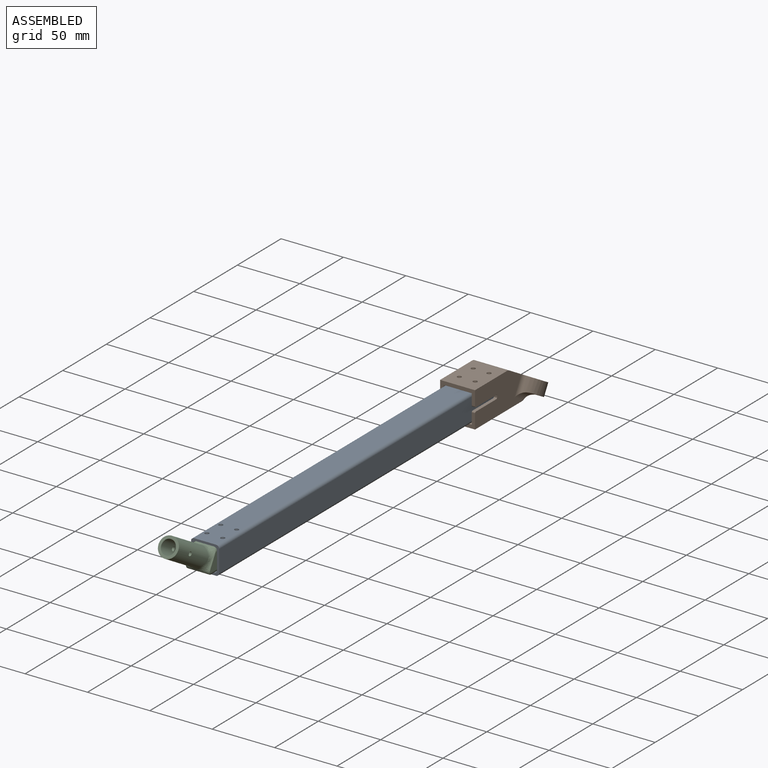
[diagram: assembled view]
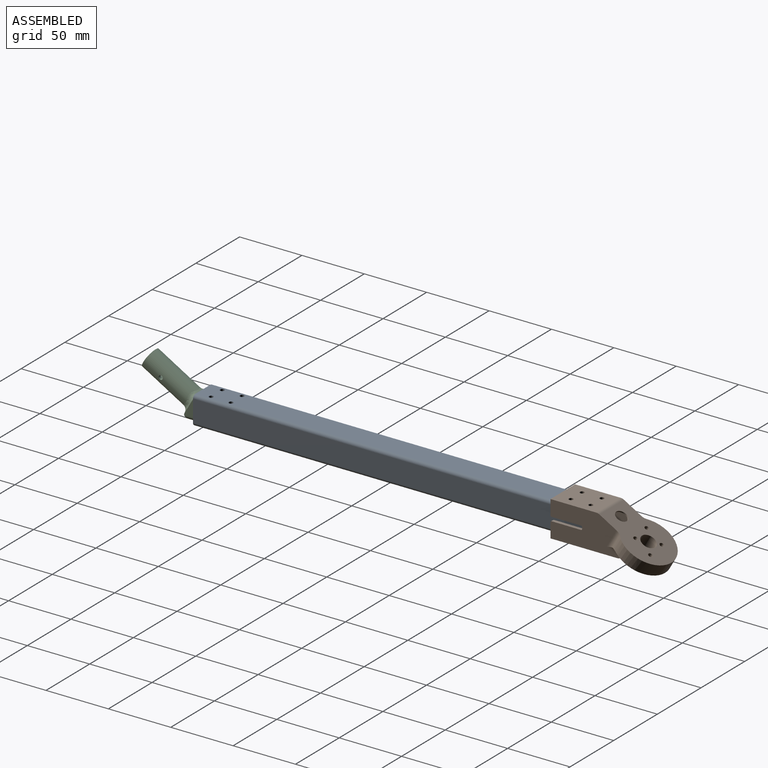
[diagram: assembled view, second angle]
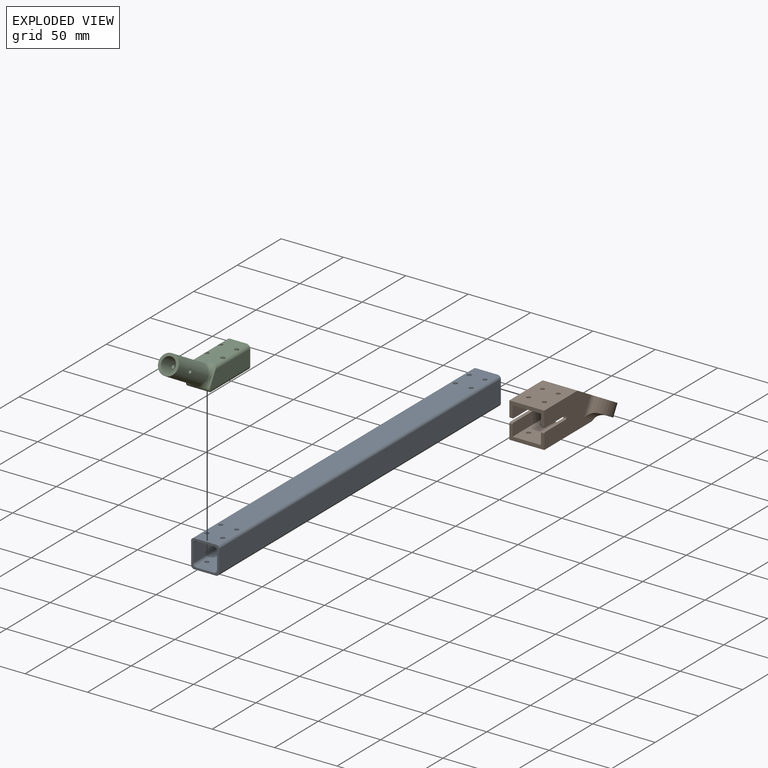
[diagram: exploded view]
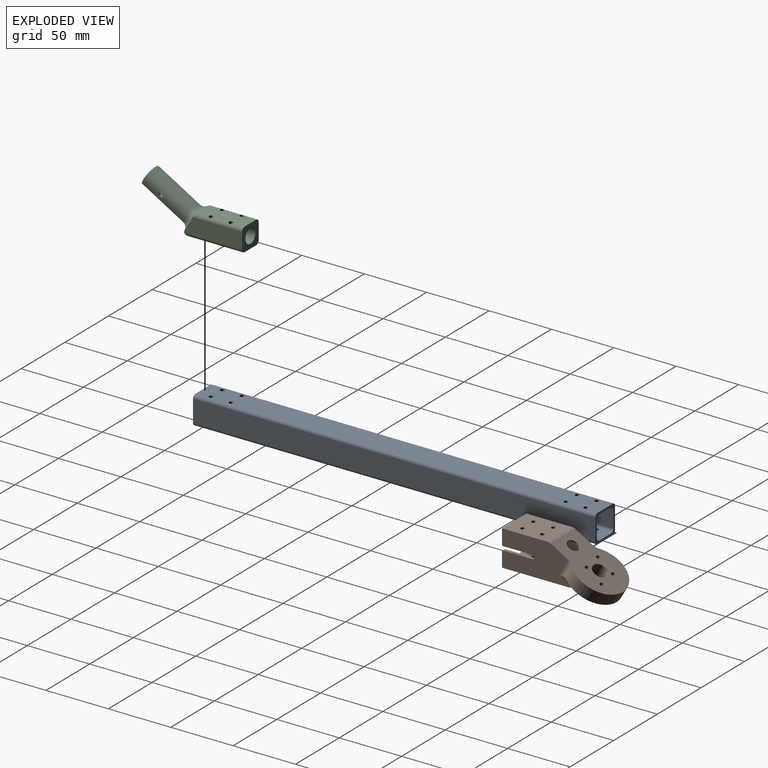
[diagram: exploded view, second angle]
ASSEMBLY  parts=3 mates=4
PART A: 34 faces, bbox 22.5x322.5x22.5 mm
  f0: cylinder r=2.54mm len=322.5mm, axis (0,-1,0), area 1277.6mm2, adj f7,f8,f12,f13,f23,f25,f31,f33
  f1: cylinder r=2.54mm len=322.5mm, axis (0,1,0), area 1277.6mm2, adj f7,f10,f12,f13,f22,f24,f30,f32
  f2: cylinder r=2.54mm len=322.5mm, axis (0,1,0), area 1277.6mm2, adj f8,f9,f12,f13,f19,f21,f27,f29
  f3: cylinder r=2.54mm len=322.5mm, axis (0,-1,0), area 1277.6mm2, adj f9,f10,f12,f13,f18,f20,f26,f28
  f4: plane 322.5x17.42mm, normal (0,0,-1), area 5549.5mm2, adj f12,f13,f14,f17,f18,f20,f22,f24
  f5: plane 322.5x17.42mm, normal (1,0,0), area 5617.9mm2, adj f12,f13,f14,f15
  f6: plane 322.5x17.42mm, normal (0,0,1), area 5549.5mm2, adj f12,f13,f15,f16,f19,f21,f23,f25
  f7: plane 322.5x13.97mm, normal (1,0,0), area 4505.3mm2, adj f0,f1,f12,f13
  f8: plane 322.5x13.97mm, normal (0,0,-1), area 4454.8mm2, adj f0,f2,f12,f13,f19,f21,f23,f25
  f9: plane 322.5x13.97mm, normal (-1,0,0), area 4505.3mm2, adj f2,f3,f12,f13
  f10: plane 322.5x13.97mm, normal (0,0,1), area 4454.8mm2, adj f1,f3,f12,f13,f18,f20,f22,f24
  f11: plane 322.5x17.42mm, normal (-1,0,0), area 5617.9mm2, adj f12,f13,f16,f17
  f12: plane 22.5x22.5mm, normal (0,-1,0), area 143.3mm2, adj f0,f1,f2,f3,f4,f5,f6,f7
  f13: plane 22.5x22.5mm, normal (0,1,0), area 143.3mm2, adj f0,f1,f2,f3,f4,f5,f6,f7
  f14: cylinder r=2.54mm len=322.5mm, axis (0,1,0), area 1286.7mm2, adj f4,f5,f12,f13
  f15: cylinder r=2.54mm len=322.5mm, axis (0,-1,0), area 1286.7mm2, adj f5,f6,f12,f13
  f16: cylinder r=2.54mm len=322.5mm, axis (0,1,0), area 1286.7mm2, adj f6,f11,f12,f13
  f17: cylinder r=2.54mm len=322.5mm, axis (0,-1,0), area 1286.7mm2, adj f4,f11,f12,f13
  f18: cylinder r=1.65mm len=3.3mm, axis (0,0,1), area 18.3mm2, adj f3,f4,f10
  f19: cylinder r=1.65mm len=3.3mm, axis (0,0,1), area 18.3mm2, adj f2,f6,f8
  f20: cylinder r=1.65mm len=3.3mm, axis (0,0,1), area 18.3mm2, adj f3,f4,f10
  f21: cylinder r=1.65mm len=3.3mm, axis (0,0,1), area 18.3mm2, adj f2,f6,f8
  f22: cylinder r=1.65mm len=3.3mm, axis (0,0,1), area 18.3mm2, adj f1,f4,f10
  f23: cylinder r=1.65mm len=3.3mm, axis (0,0,1), area 18.3mm2, adj f0,f6,f8
  f24: cylinder r=1.65mm len=3.3mm, axis (0,0,1), area 18.3mm2, adj f1,f4,f10
  f25: cylinder r=1.65mm len=3.3mm, axis (0,0,1), area 18.3mm2, adj f0,f6,f8
  f26: cylinder r=1.65mm len=3.3mm, axis (0,0,1), area 18.3mm2, adj f3,f4,f10
  f27: cylinder r=1.65mm len=3.3mm, axis (0,0,1), area 18.3mm2, adj f2,f6,f8
  f28: cylinder r=1.65mm len=3.3mm, axis (0,0,1), area 18.3mm2, adj f3,f4,f10
  f29: cylinder r=1.65mm len=3.3mm, axis (0,0,1), area 18.3mm2, adj f2,f6,f8
  f30: cylinder r=1.65mm len=3.3mm, axis (0,0,1), area 18.3mm2, adj f1,f4,f10
  f31: cylinder r=1.65mm len=3.3mm, axis (0,0,1), area 18.3mm2, adj f0,f6,f8
  f32: cylinder r=1.65mm len=3.3mm, axis (0,0,1), area 18.3mm2, adj f1,f4,f10
  f33: cylinder r=1.65mm len=3.3mm, axis (0,0,1), area 18.3mm2, adj f0,f6,f8
PART B: 72 faces, bbox 89.6x42.1x44.6 mm
  f0: plane 1.3x1.01mm, normal (0,1,0), area 0.7mm2, adj f2,f17,f70
  f1: plane 12.56x6.87mm, normal (0,1,0), area 72.7mm2, adj f10,f11,f17,f29
  f2: cylinder r=5.08mm len=2.87mm, axis (0,1,0), area 9.4mm2, adj f0,f3,f17,f29,f63,f64,f70
  f3: plane 61.81x43.73mm, normal (0,-1,0), area 1295.7mm2, adj f2,f5,f14,f27,f28,f29,f50,f51
  f4: plane 61.81x43.73mm, normal (0,1,0), area 1295.7mm2, adj f5,f14,f27,f28,f29,f38,f47,f48
  f5: plane 28x10.1mm, normal (0.87,0,-0.5), area 126.6mm2, adj f3,f4,f6,f7,f28,f34,f54,f57
  f6: plane 55.94x40.28mm, normal (0,1,0), area 1038.2mm2, adj f5,f10,f11,f27,f29,f32,f33,f34
  f7: plane 49.4x40.28mm, normal (0,-1,0), area 999.2mm2, adj f5,f27,f29,f31,f32,f33,f34,f35
  f8: plane 42x32.11mm, normal (0,0,-1), area 641.1mm2, adj f12,f13,f17,f20,f23,f26,f37,f63
  f9: cylinder r=21mm len=15.24mm, axis (0,0,1), area 8.6mm2, adj f29,f32
  f10: cylinder r=21mm len=12.61mm, axis (0,0,1), area 1.9mm2, adj f1,f6,f11,f29
  f11: plane 6.95x0.34mm, normal (0,0,-1), area 0.9mm2, adj f1,f6,f10,f17,f37
  f12: cylinder r=6mm len=12mm, axis (0,0,-1), area 377mm2, adj f8,f14,f67,f68
  f13: cylinder r=21mm len=42mm, axis (0,0,-1), area 978.1mm2, adj f8,f14,f62,f63,f65,f66
  f14: plane 55.15x42mm, normal (0,0,1), area 1583.7mm2, adj f3,f4,f12,f13,f15,f18,f21,f24
  f15: cylinder r=1.65mm len=5mm, axis (0,0,-1), area 51.8mm2, adj f14,f16
  f16: plane 6.5x6.5mm, normal (0,0,-1), area 24.6mm2, adj f15,f17
  f17: cylinder r=3.25mm len=13.6mm, axis (0,0,-1), area 138.3mm2, adj f0,f1,f2,f8,f11,f16,f29,f37
  f18: cylinder r=1.65mm len=5mm, axis (0,0,-1), area 51.8mm2, adj f14,f19
  f19: plane 6.5x6.5mm, normal (0,0,-1), area 24.6mm2, adj f18,f20
  f20: cylinder r=3.25mm len=7mm, axis (0,0,-1), area 113.7mm2, adj f8,f19,f68
  f21: cylinder r=1.65mm len=5mm, axis (0,0,-1), area 51.8mm2, adj f14,f22
  f22: plane 6.5x6.5mm, normal (0,0,-1), area 24.6mm2, adj f21,f23
  f23: cylinder r=3.25mm len=6.5mm, axis (0,0,-1), area 102.1mm2, adj f8,f22
  f24: cylinder r=1.65mm len=5mm, axis (0,0,-1), area 51.8mm2, adj f14,f25
  f25: plane 6.5x6.5mm, normal (0,0,-1), area 24.6mm2, adj f24,f26
  f26: cylinder r=3.25mm len=6.5mm, axis (0,0,-1), area 102.1mm2, adj f8,f25
  f27: plane 28x10.1mm, normal (0.87,0,-0.5), area 126.6mm2, adj f3,f4,f6,f7,f29,f35,f53,f58
  f28: plane 31.84x28mm, normal (0.5,0,0.87), area 995.1mm2, adj f3,f4,f5,f40,f42,f44,f46,f71
  f29: plane 46.43x28.07mm, normal (-0.5,0,-0.87), area 1136.4mm2, adj f1,f2,f3,f4,f6,f7,f9,f10
  f30: plane 10.9x8.64mm, normal (0,-1,0), area 41.4mm2, adj f29,f31,f38,f68,f69
  f31: cylinder r=21mm len=10.31mm, axis (0,0,1), area 1.4mm2, adj f7,f29,f30,f69
  f32: plane 22.75x5.75mm, normal (0,0,1), area 116.2mm2, adj f6,f7,f9,f29,f35
  f33: plane 22.75x8.14mm, normal (0,0,-1), area 133.5mm2, adj f6,f7,f34,f36,f61
  f34: plane 35.64x22.75mm, normal (-0.5,0,-0.87), area 901.9mm2, adj f5,f6,f7,f33,f40,f42,f44,f46
  f35: plane 30.36x22.75mm, normal (0.5,0,0.87), area 763.2mm2, adj f6,f7,f27,f32,f39,f41,f43,f45
  f36: cylinder r=7.62mm len=22.75mm, axis (0,1,0), area 186.8mm2, adj f6,f7,f33,f37,f61,f69
  f37: cylinder r=5.08mm len=16.88mm, axis (0,1,0), area 106.4mm2, adj f6,f8,f11,f17,f36,f69
  f38: cylinder r=5.08mm len=3.09mm, axis (0,1,0), area 9.9mm2, adj f4,f29,f30,f66,f67,f68
  f39: cylinder r=1.65mm len=4.3mm, axis (0.5,0,0.87), area 29.8mm2, adj f29,f35
  f40: cylinder r=1.65mm len=4.3mm, axis (0.5,0,0.87), area 29.8mm2, adj f28,f34
  f41: cylinder r=1.65mm len=4.3mm, axis (0.5,0,0.87), area 29.8mm2, adj f29,f35
  f42: cylinder r=1.65mm len=4.3mm, axis (0.5,0,0.87), area 29.8mm2, adj f28,f34
  f43: cylinder r=1.65mm len=4.3mm, axis (0.5,0,0.87), area 29.8mm2, adj f29,f35
  f44: cylinder r=1.65mm len=4.3mm, axis (0.5,0,0.87), area 29.8mm2, adj f28,f34
  f45: cylinder r=1.65mm len=4.3mm, axis (0.5,0,0.87), area 29.8mm2, adj f29,f35
  f46: cylinder r=1.65mm len=4.3mm, axis (0.5,0,0.87), area 29.8mm2, adj f28,f34
  f47: plane 2.63x1.02mm, normal (0.87,0,-0.5), area 3.1mm2, adj f4,f7,f59,f60
  f48: plane 20.27x11.7mm, normal (-0.5,0,-0.87), area 61.4mm2, adj f4,f7,f57,f59
  f49: plane 20.27x11.7mm, normal (0.5,0,0.87), area 61.4mm2, adj f4,f7,f58,f60
  f50: plane 20.27x11.7mm, normal (0.5,0,0.87), area 61.4mm2, adj f3,f6,f53,f56
  f51: plane 20.27x11.7mm, normal (-0.5,0,-0.87), area 61.4mm2, adj f3,f6,f54,f55
  f52: plane 2.63x1.02mm, normal (0.87,0,-0.5), area 3.1mm2, adj f3,f6,f55,f56
  f53: cylinder r=1mm len=2.63mm, axis (0,1,0), area 4.1mm2, adj f3,f6,f27,f50
  f54: cylinder r=1mm len=2.63mm, axis (0,-1,0), area 4.1mm2, adj f3,f5,f6,f51
  f55: cylinder r=1mm len=2.63mm, axis (0,-1,0), area 4.1mm2, adj f3,f6,f51,f52
  f56: cylinder r=1mm len=2.63mm, axis (0,1,0), area 4.1mm2, adj f3,f6,f50,f52
  f57: cylinder r=1mm len=2.63mm, axis (0,-1,0), area 4.1mm2, adj f4,f5,f7,f48
  f58: cylinder r=1mm len=2.63mm, axis (0,1,0), area 4.1mm2, adj f4,f7,f27,f49
  f59: cylinder r=1mm len=2.63mm, axis (0,-1,0), area 4.1mm2, adj f4,f7,f47,f48
  f60: cylinder r=1mm len=2.63mm, axis (0,1,0), area 4.1mm2, adj f4,f7,f47,f49
  f61: cylinder r=4.76mm len=9.53mm, axis (0,0,1), area 32.6mm2, adj f14,f33,f36
  f62: cylinder r=6mm len=16mm, axis (0,0,-1), area 61.4mm2, adj f3,f13,f14,f63
  f63: cylinder r=6mm len=18.26mm, axis (1,0,0), area 91.1mm2, adj f2,f3,f8,f13,f62,f64
  f64: cylinder r=6mm len=13.5mm, axis (0,1,0), area 54.7mm2, adj f2,f8,f63,f70
  f65: cylinder r=6mm len=16mm, axis (0,0,-1), area 61.4mm2, adj f4,f13,f14,f66
  f66: cylinder r=6mm len=18.26mm, axis (1,0,0), area 91.1mm2, adj f4,f8,f13,f38,f65,f67
  f67: cylinder r=6mm len=14.01mm, axis (0,1,0), area 59.4mm2, adj f8,f12,f38,f66,f68
  f68: cylinder r=6mm len=10.74mm, axis (1,0,0), area 42mm2, adj f8,f12,f20,f30,f38,f67,f69
  f69: torus R=11.08mm, axis (0,1,0), area 105.4mm2, adj f7,f30,f31,f36,f37,f68
  f70: cylinder r=5mm len=7.09mm, axis (-1,0,0), area 20.9mm2, adj f0,f2,f8,f17,f64
  f71: cylinder r=5mm len=28mm, axis (0,1,0), area 73.3mm2, adj f3,f4,f14,f28
PART C: 41 faces, bbox 85.7x20.7x39.5 mm
  f0: plane 18.12x3.62mm, normal (0,0,-1), area 50.8mm2, adj f1,f34,f35,f36,f37,f38,f39,f40
  f1: bspline ~3.13x3.07mm, area 6.5mm2, adj f0,f2,f33,f34,f40
  f2: bspline ~19.12x5.8mm, area 70.4mm2, adj f1,f3,f29,f30,f31,f32,f33
  f3: bspline ~1.91x1.24mm, area 0mm2, adj f2,f4,f29
  f4: bspline ~1.87x1.7mm, area 0.3mm2, adj f3,f5,f29,f32
  f5: bspline ~16.27x1.81mm, area 13.5mm2, adj f4,f6,f26,f27,f28,f29
  f6: cylinder r=3mm len=36mm, axis (-0.87,0,0.5), area 174.6mm2, adj f5,f7,f8,f19,f20,f21,f22,f26
  f7: bspline ~1.91x1.24mm, area 0mm2, adj f6,f22,f26
  f8: cylinder r=1.65mm len=17.71mm, axis (-0.5,0,-0.87), area 172.5mm2, adj f6,f9,f18,f28,f38
  f9: cylinder r=5.71mm len=40.86mm, axis (0.87,0,-0.5), area 1368.1mm2, adj f8,f10,f15,f16,f17,f19,f20
  f10: bspline ~11.43x5.72mm, area -0.6mm2, adj f9,f11
  f11: cylinder r=5.71mm len=45.66mm, axis (1,0,0), area 1597.3mm2, adj f10,f12,f13,f14,f15
  f12: cylinder r=1.65mm len=3.3mm, axis (0,-1,0), area 23.8mm2, adj f11,f31
  f13: plane 15.88x15.88mm, normal (1,0,0), area 95.3mm2, adj f11,f31
  f14: cylinder r=1.65mm len=3.3mm, axis (0,-1,0), area 21.9mm2, adj f11,f31
  f15: bspline ~11.43x6.12mm, area -2.5mm2, adj f9,f11
  f16: cylinder r=1.65mm len=17.71mm, axis (-0.5,0,-0.87), area 176mm2, adj f9,f18,f28,f29,f40
  f17: cylinder r=1.65mm len=17.71mm, axis (-0.5,0,-0.87), area 176mm2, adj f9,f18,f28,f29,f40
  f18: plane 36.71x21.19mm, normal (-0.5,0,-0.87), area 533.7mm2, adj f8,f16,f17,f19,f20,f38,f39,f40
  f19: cylinder r=1.65mm len=17.71mm, axis (-0.5,0,-0.87), area 172.5mm2, adj f6,f9,f18,f28,f38
  f20: plane 19.05x16.06mm, normal (-0.87,0,0.5), area 242.9mm2, adj f6,f9,f18,f21,f28,f29,f33,f38
  f21: plane 40.89x34.18mm, normal (0,1,0), area 544.6mm2, adj f6,f20,f22,f37,f38
  f22: bspline ~19.12x5.8mm, area 70.4mm2, adj f6,f7,f21,f23,f24,f31,f37
  f23: torus R=13.02mm, axis (1,0,0), area 2.6mm2, adj f22,f26,f27,f31
  f24: torus R=13.02mm, axis (1,0,0), area 2.2mm2, adj f22,f25,f31,f36
  f25: bspline ~19.27x5.56mm, area 47.5mm2, adj f24,f30,f31,f35
  f26: bspline ~1.87x1.7mm, area 0.3mm2, adj f5,f6,f7,f23
  f27: bspline ~19.27x5.56mm, area 55.7mm2, adj f5,f23,f31,f32
  f28: plane 32.78x18.93mm, normal (0.5,0,0.87), area 472.1mm2, adj f5,f6,f8,f16,f17,f19,f20,f29
  f29: cylinder r=3mm len=36mm, axis (0.87,0,-0.5), area 174.6mm2, adj f2,f3,f4,f5,f16,f17,f20,f28
  f30: torus R=13.02mm, axis (1,0,0), area 2.2mm2, adj f2,f25,f31,f34
  f31: cylinder r=7.94mm len=39.75mm, axis (1,0,0), area 1920.1mm2, adj f2,f12,f13,f14,f22,f23,f24,f25
  f32: torus R=13.02mm, axis (1,0,0), area 2.6mm2, adj f2,f4,f27,f31
  f33: plane 40.9x34.18mm, normal (0,-1,0), area 544.6mm2, adj f1,f2,f20,f29,f40
  f34: bspline ~3.65x3.15mm, area 1.8mm2, adj f0,f1,f30,f35
  f35: bspline ~14.88x2.35mm, area 28.4mm2, adj f0,f25,f34,f36
  f36: bspline ~3.65x3.15mm, area 1.8mm2, adj f0,f24,f35,f37
  f37: bspline ~3.13x3.07mm, area 6.5mm2, adj f0,f21,f22,f36,f38
  f38: cylinder r=3mm len=41.67mm, axis (0.87,0,-0.5), area 202.3mm2, adj f0,f8,f18,f19,f20,f21,f37,f39
  f39: cylinder r=2.54mm len=15.83mm, axis (0,1,0), area 19.2mm2, adj f0,f18,f38,f40
  f40: cylinder r=3mm len=41.67mm, axis (-0.87,0,0.5), area 202.3mm2, adj f0,f1,f16,f17,f18,f20,f33,f39
PLACE A t=(-121.63,-73.19,51.3)mm
PLACE B rot(axis=(-0.25,-0.25,-0.94),93.8deg) t=(-121.38,118.02,39.27)mm
PLACE C rot(axis=(-0.25,-0.25,-0.94),93.8deg) t=(-121.63,-234.78,50.31)mm
MATE planar B.f1 <-> A.f11  axis (1,0,0) through (-132.88,102.91,41.81)mm
MATE planar C.f16 <-> A.f8  axis (0,0,1) through (-127.98,-223.33,60.83)mm
MATE cylindrical C.f8 <-> A.f26  axis (0,0,-1) through (-115.28,-223.33,60.83)mm
MATE planar B.f35 <-> A.f22  axis (0,0,1) through (-121.38,71.64,40.05)mm
